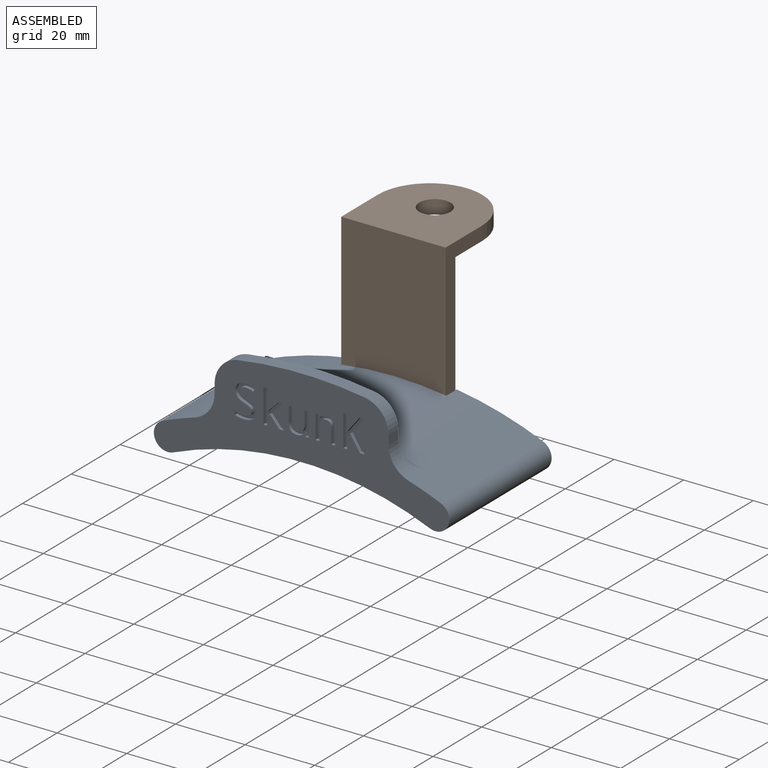
[diagram: assembled view]
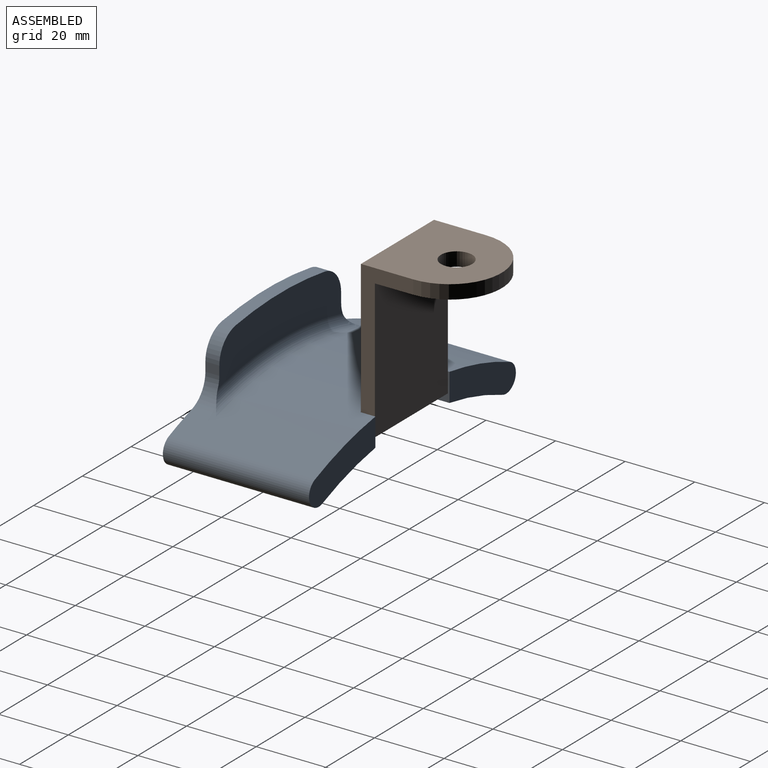
[diagram: assembled view, second angle]
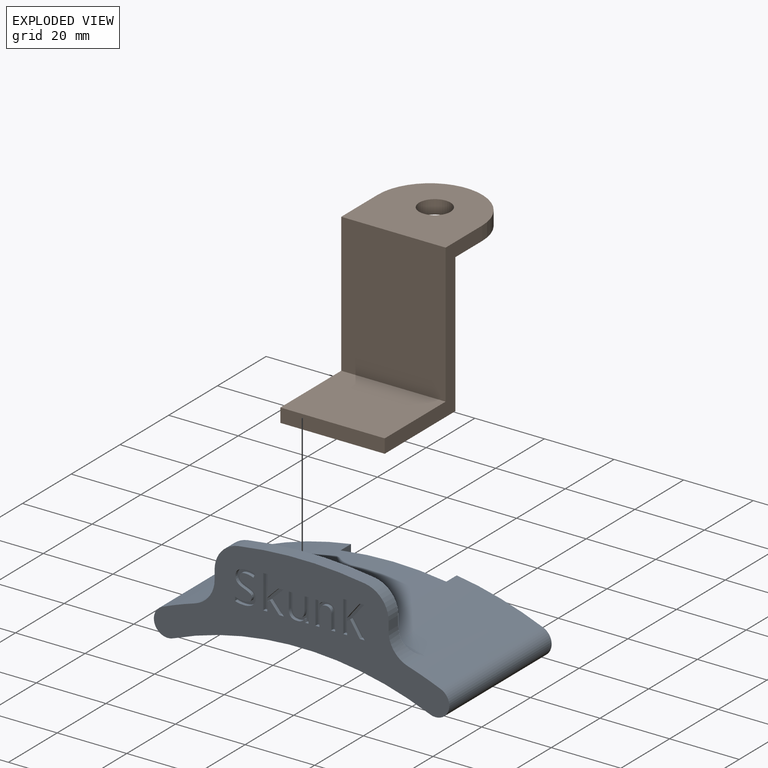
[diagram: exploded view]
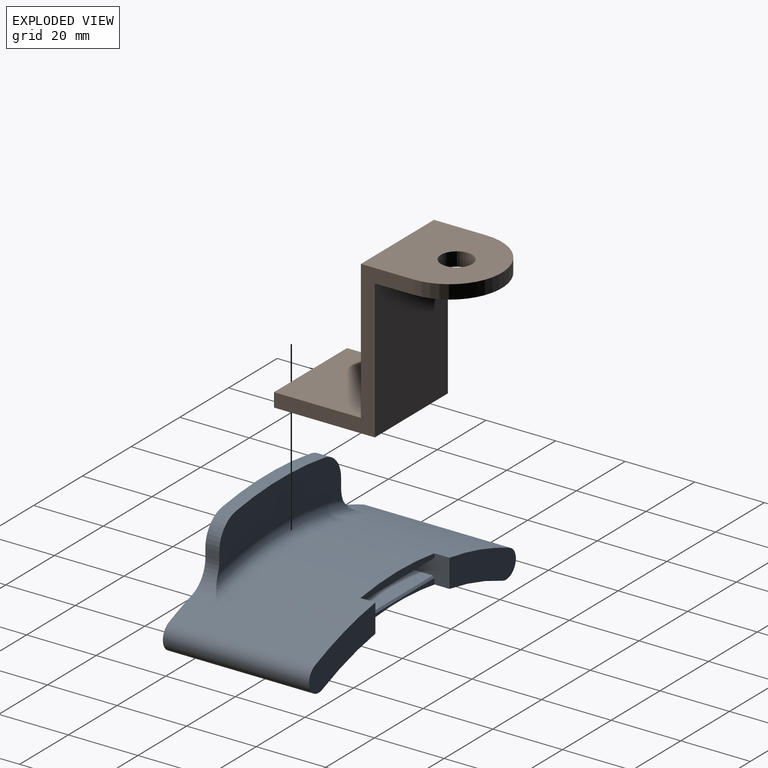
[diagram: exploded view, second angle]
ASSEMBLY  parts=2 mates=2
PART A: 105 faces, bbox 84.9x42x30.7 mm
  f0: plane 30.4x1.71mm, normal (0,1,0), area 27.4mm2, adj f1,f98,f99,f103
  f1: cylinder r=96mm len=73.85mm, axis (0,1,0), area 3052.3mm2, adj f0,f2,f3,f5,f6,f7,f98,f99
  f2: plane 27.26x14.58mm, normal (0,1,0), area 218.9mm2, adj f1,f4,f5,f98
  f3: plane 84.92x30.69mm, normal (0,-1,0), area 1333.3mm2, adj f1,f4,f5,f6,f8,f9,f10,f12
  f4: cylinder r=104mm len=80mm, axis (0,1,0), area 2882.2mm2, adj f2,f3,f5,f6,f7,f13,f14,f16
  f5: cylinder r=4mm len=42mm, axis (0,1,0), area 527.8mm2, adj f1,f2,f3,f4
  f6: cylinder r=4mm len=42mm, axis (0,1,0), area 527.8mm2, adj f1,f3,f4,f7
  f7: plane 27.26x14.58mm, normal (0,1,0), area 218.9mm2, adj f1,f4,f6,f99
  f8: cylinder r=119mm len=36.45mm, axis (0,-1,0), area 146.4mm2, adj f3,f11,f12,f15
  f9: plane 4x2.66mm, normal (-1,0,0), area 10.6mm2, adj f3,f11,f12,f13
  f10: plane 4x2.66mm, normal (1,0,0), area 10.6mm2, adj f3,f11,f14,f15
  f11: plane 51.29x15.12mm, normal (0,1,0), area 588.2mm2, adj f8,f9,f10,f12,f13,f14,f15,f16
  f12: cylinder r=8mm len=7.91mm, axis (0,-1,0), area 45.3mm2, adj f3,f8,f9,f11
  f13: cylinder r=8mm len=7.65mm, axis (0,1,0), area 48.6mm2, adj f3,f4,f9,f11,f16
  f14: cylinder r=8mm len=7.65mm, axis (0,1,0), area 48.6mm2, adj f3,f4,f10,f11,f16
  f15: cylinder r=8mm len=7.91mm, axis (0,-1,0), area 45.3mm2, adj f3,f8,f10,f11
  f16: torus R=107mm, axis (0,-1,0), area 264.5mm2, adj f4,f11,f13,f14
  f17: plane 1.32x1mm, normal (0,0,1), area 1.3mm2, adj f3,f18,f29,f30
  f18: plane 5.14x3.36mm, normal (-0.84,0,-0.55), area 6.1mm2, adj f3,f17,f19,f30
  f19: plane 3.97x3.25mm, normal (-0.77,0,0.63), area 5.1mm2, adj f3,f18,f20,f30
  f20: plane 1.3x1mm, normal (0,0,-1), area 1.3mm2, adj f3,f19,f21,f30
  f21: plane 3.51x2.82mm, normal (0.78,0,-0.63), area 4.5mm2, adj f3,f20,f22,f30
  f22: plane 1.05x1mm, normal (0.81,0,-0.58), area 1.3mm2, adj f3,f21,f23,f30
  f23: plane 4.55x1mm, normal (-1,0,0), area 4.6mm2, adj f3,f22,f24,f30
  f24: plane 1.16x1mm, normal (0,0,-1), area 1.2mm2, adj f3,f23,f25,f30
  f25: plane 9.11x1mm, normal (1,0,0), area 9.1mm2, adj f3,f24,f26,f30
  f26: plane 1.16x1mm, normal (0,0,1), area 1.2mm2, adj f3,f25,f27,f30
  f27: plane 3.64x1mm, normal (-1,0,0), area 3.6mm2, adj f3,f26,f28,f30
  f28: plane 1x0.87mm, normal (-0.63,0,0.78), area 1.1mm2, adj f3,f27,f29,f30
  f29: plane 4.35x2.8mm, normal (0.84,0,0.54), area 5.2mm2, adj f3,f17,f28,f30
  f30: plane 9.11x6.15mm, normal (0,-1,0), area 22.9mm2, adj f17,f18,f19,f20,f21,f22,f23,f24
  f31: plane 4.4x1mm, normal (1,0,0), area 4.4mm2, adj f3,f32,f43,f44
  f32: plane 1.13x1mm, normal (0,0,1), area 1.1mm2, adj f3,f31,f33,f44
  f33: plane 4.47x1mm, normal (-1,0,0), area 4.5mm2, adj f3,f32,f34,f44
  f34: extruded ~2.5x2.42mm, area 4mm2, adj f3,f33,f35,f44
  f35: extruded ~2.09x1.05mm, area 2.5mm2, adj f3,f34,f36,f44
  f36: plane 1x0.06mm, normal (0,0,-1), area 0.1mm2, adj f3,f35,f37,f44
  f37: plane 1x0.92mm, normal (-0.98,0,-0.18), area 0.9mm2, adj f3,f36,f38,f44
  f38: plane 1x0.92mm, normal (0,0,-1), area 0.9mm2, adj f3,f37,f39,f44
  f39: plane 6.84x1mm, normal (1,0,0), area 6.8mm2, adj f3,f38,f40,f44
  f40: plane 1.13x1mm, normal (0,0,1), area 1.1mm2, adj f3,f39,f41,f44
  f41: plane 3.54x1mm, normal (-1,0,0), area 3.5mm2, adj f3,f40,f42,f44
  f42: extruded ~2.48x1.91mm, area 3.6mm2, adj f3,f41,f43,f44
  f43: extruded ~1.62x1.48mm, area 2.5mm2, adj f3,f31,f42,f44
  f44: plane 6.96x5.66mm, normal (0,-1,0), area 18.3mm2, adj f31,f32,f33,f34,f35,f36,f37,f38
  f45: plane 1x0.92mm, normal (0.98,0,0.18), area 0.9mm2, adj f3,f46,f58,f59
  f46: plane 1x0.92mm, normal (0,0,1), area 0.9mm2, adj f3,f45,f47,f59
  f47: plane 6.84x1mm, normal (-1,0,0), area 6.8mm2, adj f3,f46,f48,f59
  f48: plane 1.13x1mm, normal (0,0,-1), area 1.1mm2, adj f3,f47,f49,f59
  f49: plane 3.55x1mm, normal (1,0,0), area 3.5mm2, adj f3,f48,f50,f59
  f50: extruded ~1.9x1mm, area 2mm2, adj f3,f49,f51,f59
  f51: extruded ~1.46x1mm, area 1.6mm2, adj f3,f50,f52,f59
  f52: extruded ~1.62x1.47mm, area 2.5mm2, adj f3,f51,f53,f59
  f53: plane 4.4x1mm, normal (-1,0,0), area 4.4mm2, adj f3,f52,f54,f59
  f54: plane 1.13x1mm, normal (0,0,-1), area 1.1mm2, adj f3,f53,f55,f59
  f55: plane 4.47x1mm, normal (1,0,0), area 4.5mm2, adj f3,f54,f56,f59
  f56: extruded ~2.5x2.44mm, area 4mm2, adj f3,f55,f57,f59
  f57: extruded ~2.08x1.04mm, area 2.4mm2, adj f3,f56,f58,f59
  f58: plane 1x0.06mm, normal (0,0,1), area 0.1mm2, adj f3,f45,f57,f59
  f59: plane 6.96x5.66mm, normal (0,-1,0), area 18.2mm2, adj f45,f46,f47,f48,f49,f50,f51,f52
  f60: plane 1x0.95mm, normal (0.75,0,-0.66), area 1.3mm2, adj f3,f61,f74,f75
  f61: plane 1x0.03mm, normal (0,0,-1), area 0mm2, adj f3,f60,f62,f75
  f62: plane 1.8x1mm, normal (-1,0,0.06), area 1.8mm2, adj f3,f61,f63,f75
  f63: plane 4.45x1mm, normal (-1,0,0), area 4.4mm2, adj f3,f62,f64,f75
  f64: plane 1.12x1mm, normal (0,0,-1), area 1.1mm2, adj f3,f63,f65,f75
  f65: plane 9.69x1mm, normal (1,0,0), area 9.7mm2, adj f3,f64,f66,f75
  f66: plane 1.12x1mm, normal (0,0,1), area 1.1mm2, adj f3,f65,f67,f75
  f67: plane 2.63x1mm, normal (-1,0,0), area 2.6mm2, adj f3,f66,f68,f75
  f68: plane 1x0.81mm, normal (-0.54,0,0.84), area 1mm2, adj f3,f67,f69,f75
  f69: plane 3.14x2.65mm, normal (0.76,0,0.65), area 4.1mm2, adj f3,f68,f70,f75
  f70: plane 1.33x1mm, normal (0,0,1), area 1.3mm2, adj f3,f69,f71,f75
  f71: plane 3.88x3.25mm, normal (-0.77,0,-0.64), area 5.1mm2, adj f3,f70,f72,f75
  f72: plane 3.08x2.96mm, normal (-0.69,0,0.72), area 4.3mm2, adj f3,f71,f73,f75
  f73: plane 1.38x1mm, normal (0,0,-1), area 1.4mm2, adj f3,f72,f74,f75
  f74: plane 2.46x2.45mm, normal (0.71,0,-0.71), area 3.5mm2, adj f3,f60,f73,f75
  f75: plane 9.69x5.9mm, normal (0,-1,0), area 20.4mm2, adj f60,f61,f62,f63,f64,f65,f66,f67
  f76: plane 1.11x1mm, normal (1,0,0), area 1.1mm2, adj f3,f77,f95,f96
  f77: extruded ~2.58x1mm, area 2.6mm2, adj f3,f76,f78,f96
  f78: extruded ~2.45x1mm, area 2.6mm2, adj f3,f77,f79,f96
  f79: extruded ~1.88x1mm, area 2.1mm2, adj f3,f78,f80,f96
  f80: extruded ~1.5x1mm, area 1.6mm2, adj f3,f79,f81,f96
  f81: extruded ~2.05x1.13mm, area 2.4mm2, adj f3,f80,f82,f96
  f82: extruded ~1.69x1mm, area 1.9mm2, adj f3,f81,f83,f96
  f83: extruded ~1.02x1mm, area 1.1mm2, adj f3,f82,f84,f96
  f84: extruded ~1.82x1.3mm, area 2.6mm2, adj f3,f83,f85,f96
  f85: extruded ~2.24x1mm, area 2.3mm2, adj f3,f84,f86,f96
  f86: plane 1.02x1mm, normal (-0.93,0,0.36), area 1.1mm2, adj f3,f85,f87,f96
  f87: extruded ~2.59x1mm, area 2.7mm2, adj f3,f86,f88,f96
  f88: extruded ~2.2x1mm, area 2.3mm2, adj f3,f87,f89,f96
  f89: extruded ~1.7x1mm, area 1.9mm2, adj f3,f88,f90,f96
  f90: extruded ~1.64x1mm, area 1.8mm2, adj f3,f89,f91,f96
  f91: extruded ~1.86x1.09mm, area 2.2mm2, adj f3,f90,f92,f96
  f92: extruded ~1.78x1mm, area 2mm2, adj f3,f91,f93,f96
  f93: extruded ~1x1mm, area 1.1mm2, adj f3,f92,f94,f96
  f94: extruded ~2.18x1.5mm, area 3mm2, adj f3,f93,f95,f96
  f95: extruded ~2.58x1mm, area 2.6mm2, adj f3,f76,f94,f96
  f96: plane 9.36x5.89mm, normal (0,-1,0), area 20.9mm2, adj f76,f77,f78,f79,f80,f81,f82,f83
  f97: plane 30.4x2.2mm, normal (0,1,0), area 55.6mm2, adj f4,f98,f99,f104
  f98: plane 30.3x8.09mm, normal (1,0,0), area 146.9mm2, adj f0,f1,f2,f4,f97,f100,f101,f102
  f99: plane 30.3x8.09mm, normal (-1,0,0), area 146.9mm2, adj f0,f1,f4,f7,f97,f100,f101,f102
  f100: plane 30.4x25.5mm, normal (0,0,-1), area 775.2mm2, adj f98,f99,f102,f104
  f101: plane 30.4x25.5mm, normal (0,0,1), area 775.2mm2, adj f98,f99,f102,f103
  f102: plane 30.4x4.3mm, normal (0,1,0), area 130.7mm2, adj f98,f99,f100,f101
  f103: plane 30.4x0.5mm, normal (0,0.71,0.71), area 21.5mm2, adj f0,f98,f99,f101
  f104: plane 30.4x0.5mm, normal (0,0.71,-0.71), area 21.5mm2, adj f97,f98,f99,f100
PART B: 11 faces, bbox 30x55x44 mm
  f0: plane 40x30mm, normal (0,-1,0), area 1200mm2, adj f1,f6,f7,f8
  f1: plane 30x25mm, normal (0,0,1), area 750mm2, adj f0,f2,f7,f8
  f2: plane 30x4mm, normal (0,-1,0), area 120mm2, adj f1,f3,f7,f8
  f3: plane 30x29mm, normal (0,0,-1), area 870mm2, adj f2,f4,f7,f8
  f4: plane 40x30mm, normal (0,1,0), area 1200mm2, adj f3,f5,f7,f8
  f5: plane 30x26mm, normal (0,0,-1), area 619.8mm2, adj f4,f7,f8,f9,f10
  f6: plane 30x30mm, normal (0,0,1), area 739.8mm2, adj f0,f7,f8,f9,f10
  f7: plane 44x40mm, normal (1,0,0), area 320mm2, adj f0,f1,f2,f3,f4,f5,f6,f9
  f8: plane 44x40mm, normal (-1,0,0), area 320mm2, adj f0,f1,f2,f3,f4,f5,f6,f9
  f9: cylinder r=15mm len=30mm, axis (0,0,-1), area 188.5mm2, adj f5,f6,f7,f8
  f10: cylinder r=4.5mm len=9mm, axis (0,0,1), area 113.1mm2, adj f5,f6
PLACE A t=(-28.31,-2.93,-47.58)mm
PLACE B t=(-28.31,-7.23,-50.28)mm
MATE planar B.f1 <-> A.f100  axis (0,0,1) through (-28.31,-19.73,-50.28)mm
MATE planar B.f0 <-> A.f97  axis (0,-1,0) through (-28.31,-7.23,-30.28)mm
